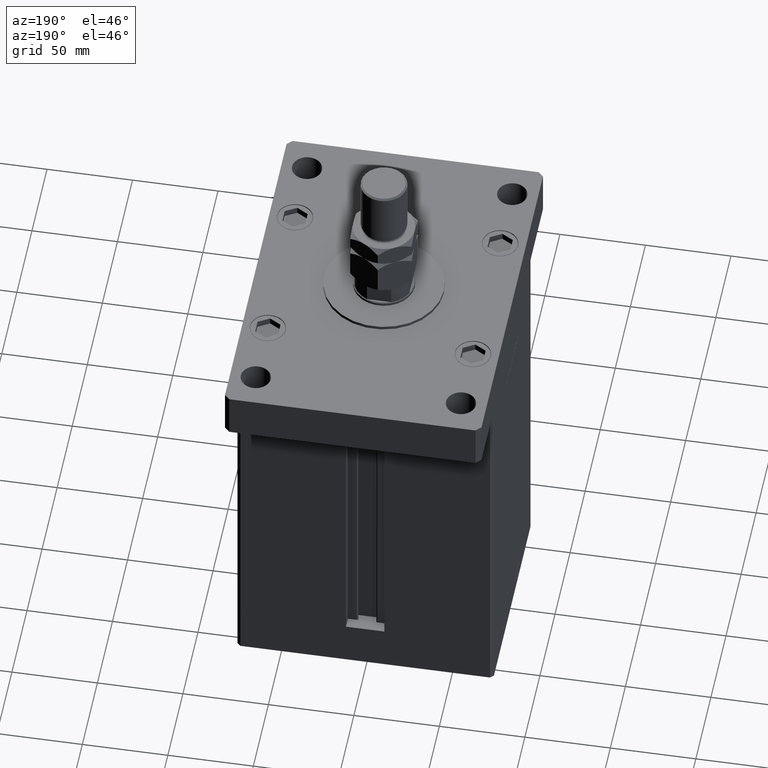
[diagram: clean part render]
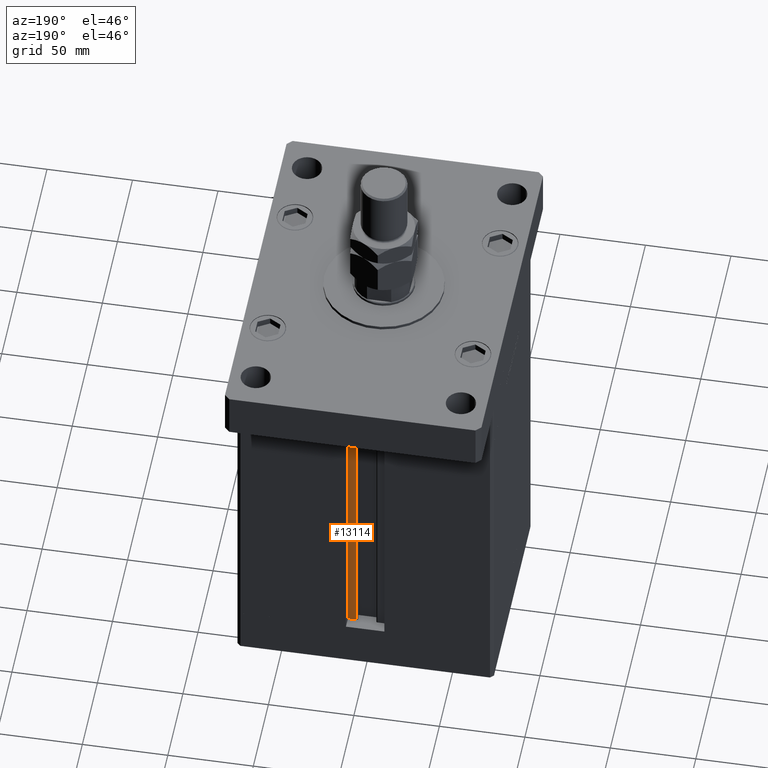
[diagram: same view with one face highlighted and labeled with its STEP entity id]
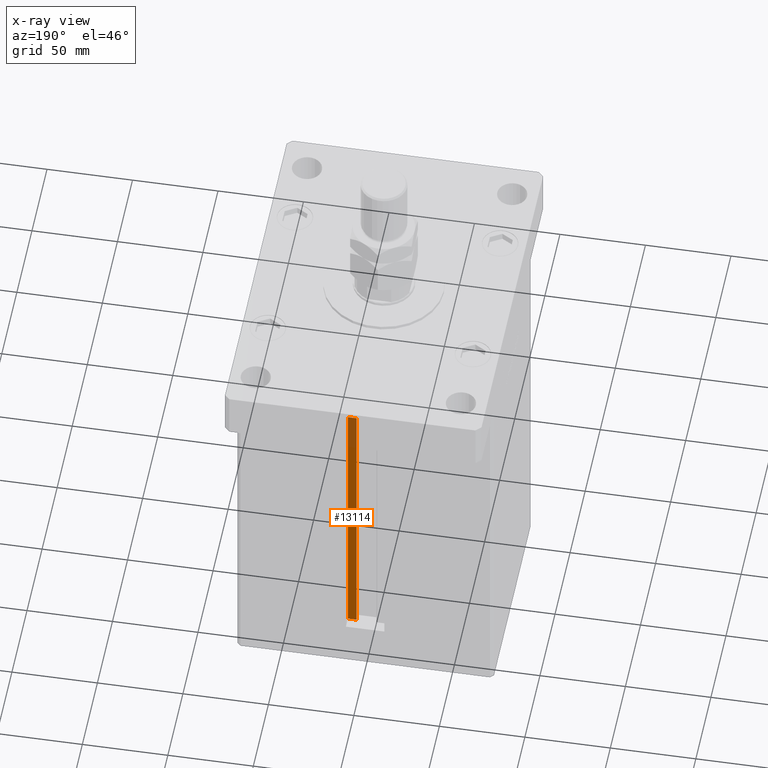
[diagram: x-ray of the same camera — body ghosted, the highlighted face saturated]
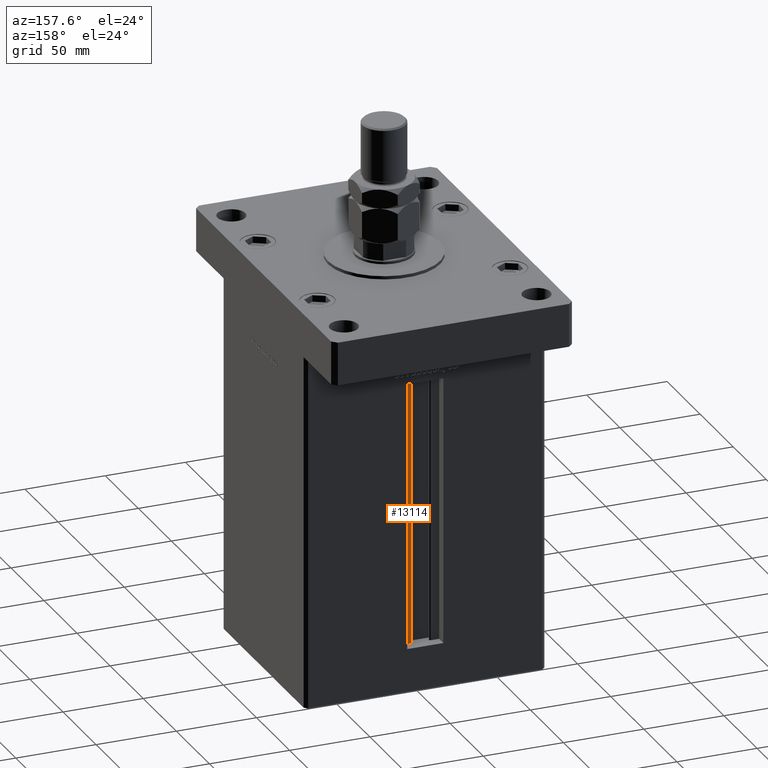
[diagram: same view with one face highlighted and labeled with its STEP entity id]
A machine part, auxiliary view. The second image highlights one B-rep face of the part: STEP entity #13114.
The next image is the same camera in x-ray: the body ghosted, the highlighted face saturated — about 15% of this face is hidden behind the body in this view.
A second angle (auxiliary view) of the same face is appended — the face is thin or edge-on in the first view.
In plain terms, the highlighted planar face has unit normal (0, -1, 0).
Its self-contained STEP definition (entity closure, byte-faithful):
#1323 = CARTESIAN_POINT ( 'NONE',  ( 6.183333333334001480, 55.99999999999999289, 0.000000000000000000 ) ) ;
#6781 = CARTESIAN_POINT ( 'NONE',  ( 6.183333333334001480, 55.99999999999999289, 166.9999999999999432 ) ) ;
#7110 = VERTEX_POINT ( 'NONE', #25676 ) ;
#9630 = FACE_OUTER_BOUND ( 'NONE', #33043, .T. ) ;
#11484 = VERTEX_POINT ( 'NONE', #32254 ) ;
#12074 = EDGE_CURVE ( 'NONE', #11484, #7110, #34801, .T. ) ;
#13114 = ADVANCED_FACE ( 'NONE', ( #9630 ), #26533, .F. ) ;
#14721 = VECTOR ( 'NONE', #38777, 1000.000000000000000 ) ;
#14790 = DIRECTION ( 'NONE',  ( 1.000000000000000000, 0.000000000000000000, 0.000000000000000000 ) ) ;
#16865 = CARTESIAN_POINT ( 'NONE',  ( 0.000000000000000000, 55.99999999999999289, 167.0000000000000000 ) ) ;
#17341 = VERTEX_POINT ( 'NONE', #6781 ) ;
#19006 = EDGE_CURVE ( 'NONE', #7110, #17341, #50449, .T. ) ;
#21994 = LINE ( 'NONE', #31439, #29298 ) ;
#24136 = EDGE_CURVE ( 'NONE', #30432, #17341, #45680, .T. ) ;
#25676 = CARTESIAN_POINT ( 'NONE',  ( 11.25000000000000178, 55.99999999999999289, 166.9999999999999432 ) ) ;
#26533 = PLANE ( 'NONE',  #53509 ) ;
#29298 = VECTOR ( 'NONE', #14790, 1000.000000000000000 ) ;
#30432 = VERTEX_POINT ( 'NONE', #35949 ) ;
#31262 = DIRECTION ( 'NONE',  ( 0.000000000000000000, -0.000000000000000000, -1.000000000000000000 ) ) ;
#31439 = CARTESIAN_POINT ( 'NONE',  ( 6.183333333334001480, 55.99999999999999289, 0.000000000000000000 ) ) ;
#31533 = DIRECTION ( 'NONE',  ( 0.000000000000000000, -1.000000000000000000, 0.000000000000000000 ) ) ;
#32254 = CARTESIAN_POINT ( 'NONE',  ( 11.25000000000000178, 55.99999999999999289, 0.000000000000000000 ) ) ;
#33043 = EDGE_LOOP ( 'NONE', ( #43988, #37217, #38015, #38321 ) ) ;
#34801 = LINE ( 'NONE', #52014, #45512 ) ;
#35949 = CARTESIAN_POINT ( 'NONE',  ( 6.183333333334001480, 55.99999999999999289, 0.000000000000000000 ) ) ;
#37217 = ORIENTED_EDGE ( 'NONE', *, *, #41569, .F. ) ;
#37327 = CARTESIAN_POINT ( 'NONE',  ( 6.183333333334001480, 55.99999999999999289, 0.000000000000000000 ) ) ;
#38015 = ORIENTED_EDGE ( 'NONE', *, *, #24136, .T. ) ;
#38321 = ORIENTED_EDGE ( 'NONE', *, *, #19006, .F. ) ;
#38777 = DIRECTION ( 'NONE',  ( -1.000000000000000000, 0.000000000000000000, 0.000000000000000000 ) ) ;
#41569 = EDGE_CURVE ( 'NONE', #30432, #11484, #21994, .T. ) ;
#42109 = DIRECTION ( 'NONE',  ( -0.000000000000000000, -0.000000000000000000, 1.000000000000000000 ) ) ;
#43988 = ORIENTED_EDGE ( 'NONE', *, *, #12074, .F. ) ;
#45512 = VECTOR ( 'NONE', #42109, 1000.000000000000000 ) ;
#45680 = LINE ( 'NONE', #37327, #46612 ) ;
#46612 = VECTOR ( 'NONE', #54267, 1000.000000000000000 ) ;
#50449 = LINE ( 'NONE', #16865, #14721 ) ;
#52014 = CARTESIAN_POINT ( 'NONE',  ( 11.25000000000000178, 55.99999999999999289, 0.000000000000000000 ) ) ;
#53509 = AXIS2_PLACEMENT_3D ( 'NONE', #1323, #31533, #31262 ) ;
#54267 = DIRECTION ( 'NONE',  ( -0.000000000000000000, -0.000000000000000000, 1.000000000000000000 ) ) ;